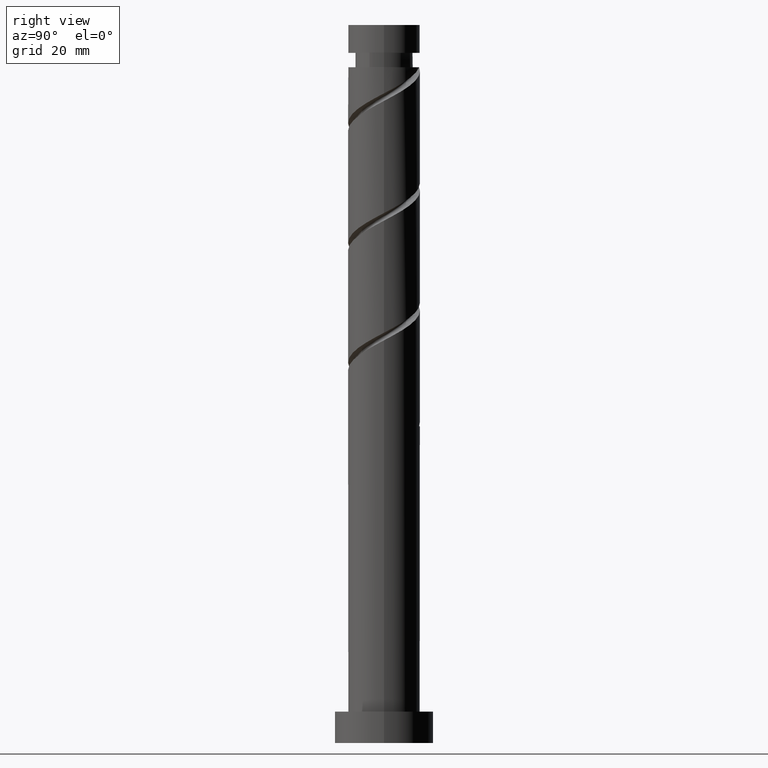
[diagram: clean part render]
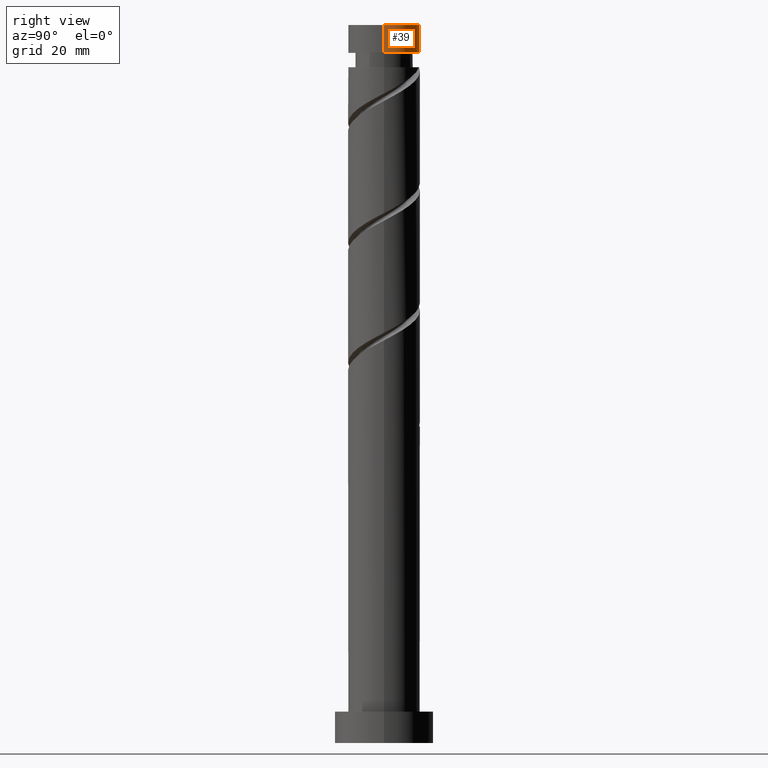
[diagram: same view with one face highlighted and labeled with its STEP entity id]
A machine part, right view. The second image highlights one B-rep face of the part: STEP entity #39.
In plain terms, the highlighted cylindrical surface (edge-blend (fillet) strip) has radius 8 mm, axis along (-0, -0, -1).
Its self-contained STEP definition (entity closure, byte-faithful):
#6 = CARTESIAN_POINT ( 'NONE',  ( 0.000000000000000000, 0.000000000000000000, 160.0000000000000000 ) ) ;
#18 = LINE ( 'NONE', #669, #1190 ) ;
#31 = AXIS2_PLACEMENT_3D ( 'NONE', #6, #1563, #411 ) ;
#39 = ADVANCED_FACE ( 'NONE', ( #394 ), #287, .T. ) ;
#88 = ORIENTED_EDGE ( 'NONE', *, *, #616, .F. ) ;
#161 = CIRCLE ( 'NONE', #1102, 7.999999999999992895 ) ;
#183 = CARTESIAN_POINT ( 'NONE',  ( -8.000000000000000000, 0.000000000000000000, 160.0000000000000000 ) ) ;
#262 = EDGE_CURVE ( 'NONE', #1231, #1119, #963, .T. ) ;
#287 = CYLINDRICAL_SURFACE ( 'NONE', #31, 8.000000000000000000 ) ;
#312 = CARTESIAN_POINT ( 'NONE',  ( 8.000000000000000000, 9.797174393178825657E-16, 160.0000000000000000 ) ) ;
#394 = FACE_OUTER_BOUND ( 'NONE', #1252, .T. ) ;
#405 = VECTOR ( 'NONE', #969, 1000.000000000000000 ) ;
#411 = DIRECTION ( 'NONE',  ( -1.000000000000000000, 0.000000000000000000, 0.000000000000000000 ) ) ;
#494 = DIRECTION ( 'NONE',  ( 0.000000000000000000, 0.000000000000000000, 1.000000000000000000 ) ) ;
#510 = CARTESIAN_POINT ( 'NONE',  ( 0.000000000000000000, 0.000000000000000000, 153.7894871955688529 ) ) ;
#543 = VERTEX_POINT ( 'NONE', #1656 ) ;
#616 = EDGE_CURVE ( 'NONE', #1231, #1659, #888, .T. ) ;
#647 = EDGE_CURVE ( 'NONE', #543, #1119, #161, .T. ) ;
#669 = CARTESIAN_POINT ( 'NONE',  ( -8.000000000000000000, 0.000000000000000000, 160.0000000000000000 ) ) ;
#749 = CARTESIAN_POINT ( 'NONE',  ( 0.000000000000000000, 0.000000000000000000, 160.0000000000000000 ) ) ;
#812 = AXIS2_PLACEMENT_3D ( 'NONE', #749, #494, #889 ) ;
#823 = ORIENTED_EDGE ( 'NONE', *, *, #262, .T. ) ;
#888 = CIRCLE ( 'NONE', #812, 8.000000000000000000 ) ;
#889 = DIRECTION ( 'NONE',  ( 1.000000000000000000, 0.000000000000000000, 0.000000000000000000 ) ) ;
#963 = LINE ( 'NONE', #312, #405 ) ;
#969 = DIRECTION ( 'NONE',  ( -0.000000000000000000, -0.000000000000000000, -1.000000000000000000 ) ) ;
#1016 = DIRECTION ( 'NONE',  ( -1.000000000000000000, 0.000000000000000000, 0.000000000000000000 ) ) ;
#1102 = AXIS2_PLACEMENT_3D ( 'NONE', #510, #1150, #1016 ) ;
#1115 = CARTESIAN_POINT ( 'NONE',  ( 7.999999999999992895, 9.797174393178821713E-16, 153.7894871955688529 ) ) ;
#1119 = VERTEX_POINT ( 'NONE', #1115 ) ;
#1129 = ORIENTED_EDGE ( 'NONE', *, *, #1433, .F. ) ;
#1133 = ORIENTED_EDGE ( 'NONE', *, *, #647, .F. ) ;
#1150 = DIRECTION ( 'NONE',  ( -0.000000000000000000, -0.000000000000000000, -1.000000000000000000 ) ) ;
#1186 = DIRECTION ( 'NONE',  ( -0.000000000000000000, -0.000000000000000000, -1.000000000000000000 ) ) ;
#1190 = VECTOR ( 'NONE', #1186, 1000.000000000000000 ) ;
#1231 = VERTEX_POINT ( 'NONE', #1540 ) ;
#1252 = EDGE_LOOP ( 'NONE', ( #88, #823, #1133, #1129 ) ) ;
#1433 = EDGE_CURVE ( 'NONE', #1659, #543, #18, .T. ) ;
#1540 = CARTESIAN_POINT ( 'NONE',  ( 8.000000000000000000, 9.797174393178825657E-16, 160.0000000000000000 ) ) ;
#1563 = DIRECTION ( 'NONE',  ( -0.000000000000000000, -0.000000000000000000, -1.000000000000000000 ) ) ;
#1656 = CARTESIAN_POINT ( 'NONE',  ( -7.999999999999992895, 0.000000000000000000, 153.7894871955688529 ) ) ;
#1659 = VERTEX_POINT ( 'NONE', #183 ) ;